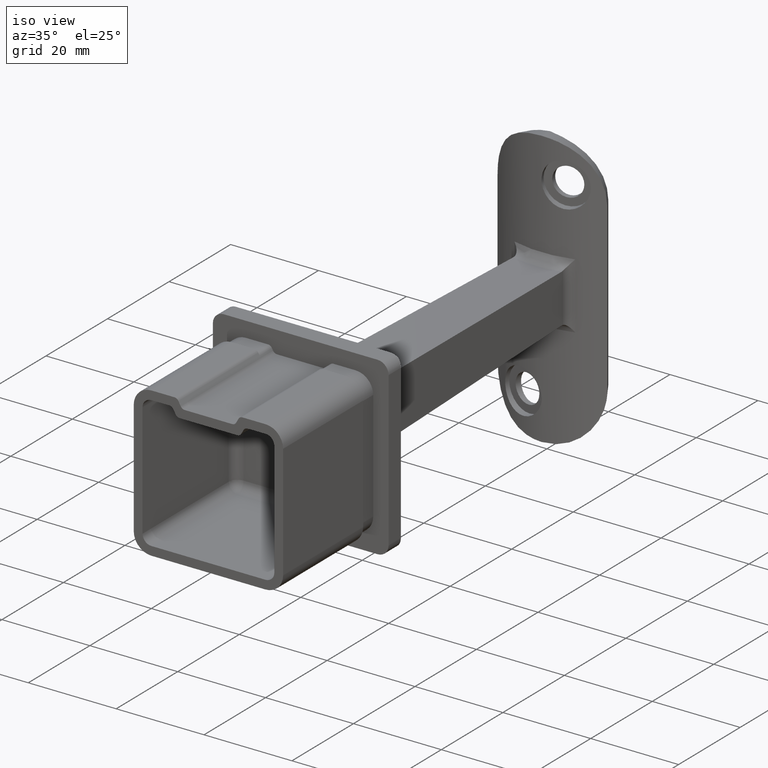
[diagram: clean part render]
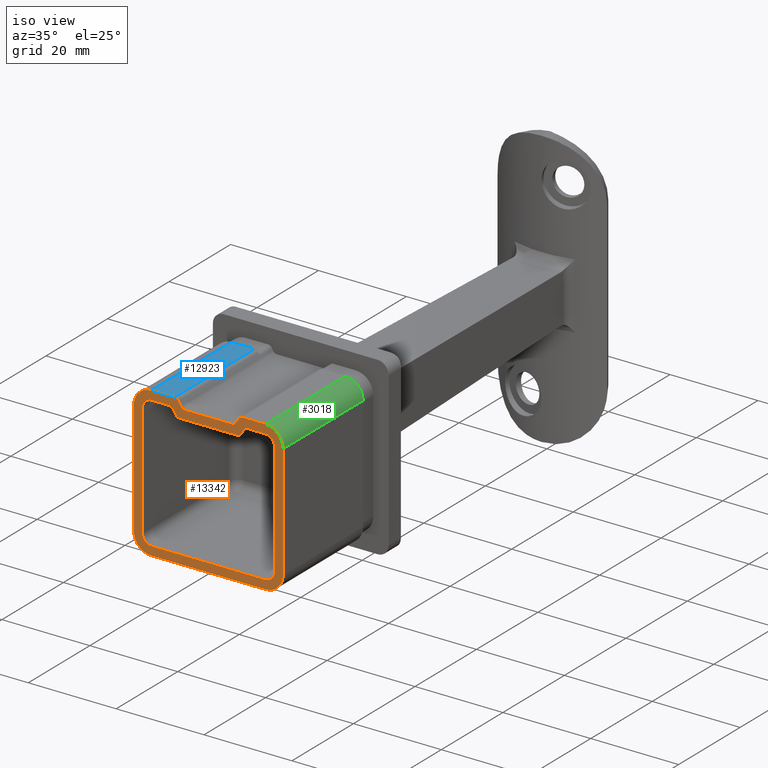
[diagram: same view with three faces highlighted in distinct colors, each labeled with its STEP entity id]
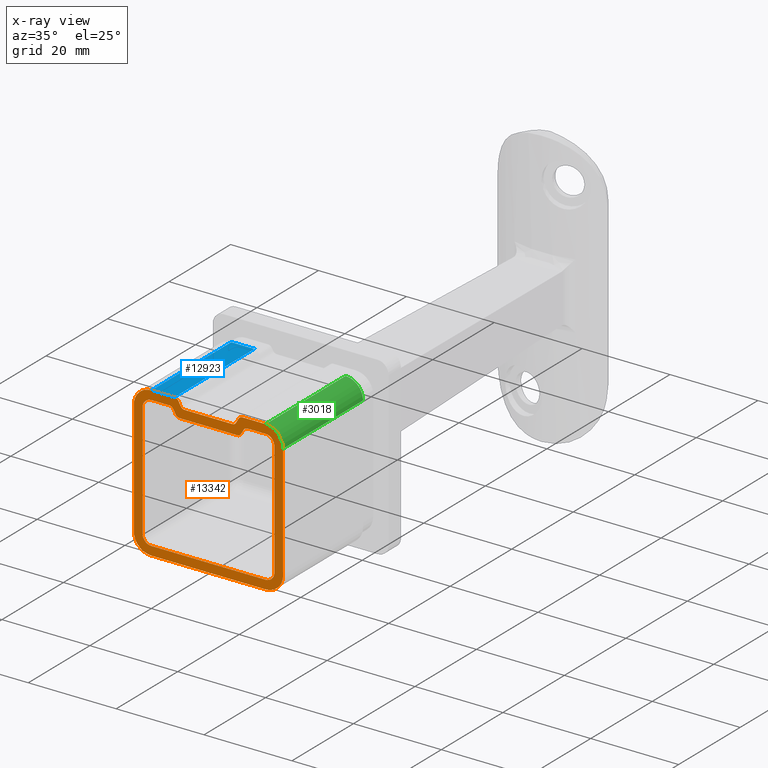
[diagram: x-ray of the same camera — body ghosted, the three highlighted faces saturated]
A machine part, iso view with three faces highlighted in distinct colors.
The next image is the same camera in x-ray (body ghosted, the three faces saturated) — at least one of them is partly hidden behind the body in this view.
Their STEP definitions:

[orange] entity #13342 — the highlighted planar face has unit normal (0, -1, 0).
#112 = CARTESIAN_POINT ( 'NONE',  ( -17.00000000000000355, -30.00000000000000000, -13.00000000000000533 ) ) ;
#205 = CARTESIAN_POINT ( 'NONE',  ( 8.673617379884037444E-16, -30.00000000000000000, -15.00000000000000355 ) ) ;
#360 = VERTEX_POINT ( 'NONE', #3699 ) ;
#378 = DIRECTION ( 'NONE',  ( -0.000000000000000000, 1.000000000000000000, -0.000000000000000000 ) ) ;
#419 = LINE ( 'NONE', #13459, #6982 ) ;
#462 = AXIS2_PLACEMENT_3D ( 'NONE', #12911, #14147, #15362 ) ;
#557 = DIRECTION ( 'NONE',  ( -0.000000000000000000, 1.000000000000000000, -0.000000000000000000 ) ) ;
#662 = DIRECTION ( 'NONE',  ( 0.000000000000000000, -1.000000000000000000, 0.000000000000000000 ) ) ;
#667 = VERTEX_POINT ( 'NONE', #4954 ) ;
#924 = DIRECTION ( 'NONE',  ( -0.000000000000000000, 1.000000000000000000, -0.000000000000000000 ) ) ;
#972 = CARTESIAN_POINT ( 'NONE',  ( 16.99999999999999645, -30.00000000000000000, 17.00000000000000355 ) ) ;
#980 = EDGE_CURVE ( 'NONE', #667, #5282, #7734, .T. ) ;
#1091 = ORIENTED_EDGE ( 'NONE', *, *, #5613, .T. ) ;
#1115 = VERTEX_POINT ( 'NONE', #14782 ) ;
#1152 = VERTEX_POINT ( 'NONE', #15920 ) ;
#1188 = EDGE_CURVE ( 'NONE', #12578, #14993, #419, .T. ) ;
#1192 = LINE ( 'NONE', #13693, #7145 ) ;
#1249 = CARTESIAN_POINT ( 'NONE',  ( 0.000000000000000000, -30.00000000000000000, 0.000000000000000000 ) ) ;
#1257 = EDGE_CURVE ( 'NONE', #8691, #4896, #3570, .T. ) ;
#1339 = DIRECTION ( 'NONE',  ( 0.000000000000000000, 0.000000000000000000, -1.000000000000000000 ) ) ;
#1457 = ORIENTED_EDGE ( 'NONE', *, *, #8167, .T. ) ;
#1547 = VECTOR ( 'NONE', #12171, 1000.000000000000000 ) ;
#1698 = ORIENTED_EDGE ( 'NONE', *, *, #12939, .T. ) ;
#1763 = CIRCLE ( 'NONE', #3958, 1.000000000000000888 ) ;
#1815 = CIRCLE ( 'NONE', #8132, 1.000000000000000888 ) ;
#1831 = ORIENTED_EDGE ( 'NONE', *, *, #7512, .T. ) ;
#1843 = VERTEX_POINT ( 'NONE', #6605 ) ;
#1890 = DIRECTION ( 'NONE',  ( 1.000000000000000000, 0.000000000000000000, 5.782411586589357392E-17 ) ) ;
#1948 = DIRECTION ( 'NONE',  ( -0.000000000000000000, 1.000000000000000000, -0.000000000000000000 ) ) ;
#2040 = EDGE_CURVE ( 'NONE', #10551, #15736, #14465, .T. ) ;
#2060 = ORIENTED_EDGE ( 'NONE', *, *, #12520, .F. ) ;
#2072 = CARTESIAN_POINT ( 'NONE',  ( 6.577350269189630616, -30.00000000000000000, 13.00000000000000178 ) ) ;
#2194 = CIRCLE ( 'NONE', #462, 0.9999999999999991118 ) ;
#2195 = VECTOR ( 'NONE', #7680, 999.9999999999998863 ) ;
#2199 = DIRECTION ( 'NONE',  ( 0.4999999999999936162, -0.000000000000000000, -0.8660254037844423713 ) ) ;
#2247 = ORIENTED_EDGE ( 'NONE', *, *, #980, .T. ) ;
#2260 = VERTEX_POINT ( 'NONE', #9461 ) ;
#2297 = EDGE_LOOP ( 'NONE', ( #2060, #1091, #8372, #1831, #12927, #5828, #7273, #11777, #8011, #11411, #11440, #4089, #9238, #5972, #14027, #13434 ) ) ;
#2318 = EDGE_CURVE ( 'NONE', #6455, #5193, #3941, .T. ) ;
#2335 = CARTESIAN_POINT ( 'NONE',  ( -1.575985260789616301E-15, -30.00000000000000000, 13.00000000000000178 ) ) ;
#2345 = DIRECTION ( 'NONE',  ( 0.000000000000000000, 0.000000000000000000, -1.000000000000000000 ) ) ;
#2391 = CARTESIAN_POINT ( 'NONE',  ( -7.443375672974072543, -30.00000000000000000, 13.50000000000000888 ) ) ;
#2443 = DIRECTION ( 'NONE',  ( -0.4999999999999936162, 0.000000000000000000, 0.8660254037844423713 ) ) ;
#2449 = DIRECTION ( 'NONE',  ( -1.000000000000000000, 0.000000000000000000, -2.592777561289471783E-16 ) ) ;
#2465 = VERTEX_POINT ( 'NONE', #7763 ) ;
#2484 = DIRECTION ( 'NONE',  ( 0.000000000000000000, 0.000000000000000000, -1.000000000000000000 ) ) ;
#2502 = CIRCLE ( 'NONE', #13985, 4.000000000000000000 ) ;
#2542 = CIRCLE ( 'NONE', #8305, 1.000000000000000888 ) ;
#2599 = CARTESIAN_POINT ( 'NONE',  ( -13.00000000000000533, -30.00000000000000000, -13.00000000000000533 ) ) ;
#2603 = VERTEX_POINT ( 'NONE', #10709 ) ;
#2663 = ORIENTED_EDGE ( 'NONE', *, *, #1188, .F. ) ;
#2761 = CIRCLE ( 'NONE', #3807, 2.000000000000000000 ) ;
#2841 = CARTESIAN_POINT ( 'NONE',  ( -15.00000000000000178, -30.00000000000000000, -13.00000000000000355 ) ) ;
#2993 = DIRECTION ( 'NONE',  ( 1.156482317317871478E-16, 0.000000000000000000, -1.000000000000000000 ) ) ;
#3184 = CIRCLE ( 'NONE', #15410, 2.000000000000000000 ) ;
#3295 = VECTOR ( 'NONE', #10987, 1000.000000000000000 ) ;
#3403 = VECTOR ( 'NONE', #2443, 1000.000000000000000 ) ;
#3478 = ORIENTED_EDGE ( 'NONE', *, *, #10352, .T. ) ;
#3520 = VECTOR ( 'NONE', #9796, 1000.000000000000000 ) ;
#3570 = CIRCLE ( 'NONE', #13622, 0.9999999999999991118 ) ;
#3597 = CARTESIAN_POINT ( 'NONE',  ( -6.577350269189629728, -30.00000000000000000, 14.00000000000000000 ) ) ;
#3602 = EDGE_CURVE ( 'NONE', #1152, #2603, #7310, .T. ) ;
#3639 = AXIS2_PLACEMENT_3D ( 'NONE', #5669, #14532, #10819 ) ;
#3640 = VERTEX_POINT ( 'NONE', #12495 ) ;
#3658 = ORIENTED_EDGE ( 'NONE', *, *, #13821, .T. ) ;
#3699 = CARTESIAN_POINT ( 'NONE',  ( 7.732050807568866979, -30.00000000000000000, 17.00000000000000000 ) ) ;
#3807 = AXIS2_PLACEMENT_3D ( 'NONE', #9858, #924, #2345 ) ;
#3828 = DIRECTION ( 'NONE',  ( 0.000000000000000000, -1.000000000000000000, 0.000000000000000000 ) ) ;
#3911 = DIRECTION ( 'NONE',  ( 0.000000000000000000, 0.000000000000000000, -1.000000000000000000 ) ) ;
#3941 = CIRCLE ( 'NONE', #7443, 4.000000000000000000 ) ;
#3954 = CARTESIAN_POINT ( 'NONE',  ( 16.99999999999999645, -30.00000000000000000, 13.00000000000000533 ) ) ;
#3958 = AXIS2_PLACEMENT_3D ( 'NONE', #15062, #15165, #13841 ) ;
#4083 = CARTESIAN_POINT ( 'NONE',  ( -7.732050807568861650, -30.00000000000000000, 16.00000000000000000 ) ) ;
#4089 = ORIENTED_EDGE ( 'NONE', *, *, #8687, .T. ) ;
#4304 = CARTESIAN_POINT ( 'NONE',  ( 12.99999999999999822, -30.00000000000000000, 15.00000000000000533 ) ) ;
#4320 = EDGE_CURVE ( 'NONE', #11396, #2465, #2194, .T. ) ;
#4419 = EDGE_CURVE ( 'NONE', #10138, #3640, #8135, .T. ) ;
#4540 = CARTESIAN_POINT ( 'NONE',  ( 0.2631397208143128608, -30.00000000000000000, 0.1519237886466238974 ) ) ;
#4896 = VERTEX_POINT ( 'NONE', #9076 ) ;
#4921 = CARTESIAN_POINT ( 'NONE',  ( -13.00000000000000178, -30.00000000000000000, -15.00000000000000355 ) ) ;
#4954 = CARTESIAN_POINT ( 'NONE',  ( -7.732050807568861650, -30.00000000000000000, 17.00000000000000000 ) ) ;
#4993 = ORIENTED_EDGE ( 'NONE', *, *, #3602, .F. ) ;
#5075 = ORIENTED_EDGE ( 'NONE', *, *, #11896, .T. ) ;
#5093 = VERTEX_POINT ( 'NONE', #11134 ) ;
#5143 = CIRCLE ( 'NONE', #14029, 1.000000000000000888 ) ;
#5168 = CIRCLE ( 'NONE', #13475, 1.000000000000000888 ) ;
#5193 = VERTEX_POINT ( 'NONE', #6323 ) ;
#5225 = EDGE_CURVE ( 'NONE', #1843, #15736, #1192, .T. ) ;
#5240 = CARTESIAN_POINT ( 'NONE',  ( 8.020725942163686284, -30.00000000000000000, 14.50000000000000178 ) ) ;
#5257 = ORIENTED_EDGE ( 'NONE', *, *, #15508, .T. ) ;
#5282 = VERTEX_POINT ( 'NONE', #11564 ) ;
#5319 = CIRCLE ( 'NONE', #10298, 4.000000000000000000 ) ;
#5327 = EDGE_CURVE ( 'NONE', #5443, #13032, #9485, .T. ) ;
#5361 = DIRECTION ( 'NONE',  ( 0.000000000000000000, -1.000000000000000000, 0.000000000000000000 ) ) ;
#5443 = VERTEX_POINT ( 'NONE', #8115 ) ;
#5514 = CARTESIAN_POINT ( 'NONE',  ( -13.00000000000000178, -30.00000000000000000, -13.00000000000000355 ) ) ;
#5520 = DIRECTION ( 'NONE',  ( 0.000000000000000000, 0.000000000000000000, -1.000000000000000000 ) ) ;
#5613 = EDGE_CURVE ( 'NONE', #7639, #11790, #1763, .T. ) ;
#5654 = DIRECTION ( 'NONE',  ( 0.000000000000000000, 0.000000000000000000, -1.000000000000000000 ) ) ;
#5669 = CARTESIAN_POINT ( 'NONE',  ( 8.886751345948125547, -30.00000000000000000, 14.00000000000000355 ) ) ;
#5687 = CARTESIAN_POINT ( 'NONE',  ( 12.99999999999999822, -30.00000000000000000, 13.00000000000000533 ) ) ;
#5769 = VECTOR ( 'NONE', #1890, 1000.000000000000000 ) ;
#5828 = ORIENTED_EDGE ( 'NONE', *, *, #2040, .T. ) ;
#5906 = CIRCLE ( 'NONE', #3639, 0.9999999999999991118 ) ;
#5972 = ORIENTED_EDGE ( 'NONE', *, *, #4320, .T. ) ;
#6041 = ORIENTED_EDGE ( 'NONE', *, *, #12627, .T. ) ;
#6058 = CARTESIAN_POINT ( 'NONE',  ( -13.00000000000000533, -30.00000000000000000, -17.00000000000000355 ) ) ;
#6075 = VERTEX_POINT ( 'NONE', #6058 ) ;
#6085 = CARTESIAN_POINT ( 'NONE',  ( 7.443375672974075208, -30.00000000000000000, 13.50000000000001243 ) ) ;
#6099 = DIRECTION ( 'NONE',  ( 0.000000000000000000, 0.000000000000000000, 1.000000000000000000 ) ) ;
#6159 = CARTESIAN_POINT ( 'NONE',  ( 12.99999999999999822, -30.00000000000000000, -16.99999999999999645 ) ) ;
#6179 = DIRECTION ( 'NONE',  ( 0.000000000000000000, 0.000000000000000000, -1.000000000000000000 ) ) ;
#6227 = DIRECTION ( 'NONE',  ( 0.000000000000000000, 0.000000000000000000, -1.000000000000000000 ) ) ;
#6323 = CARTESIAN_POINT ( 'NONE',  ( 16.99999999999999645, -30.00000000000000000, -12.99999999999999822 ) ) ;
#6428 = CARTESIAN_POINT ( 'NONE',  ( -17.00000000000000355, -30.00000000000000000, -17.00000000000000355 ) ) ;
#6434 = CARTESIAN_POINT ( 'NONE',  ( -3.889166341934207970E-15, -30.00000000000000000, 15.00000000000000178 ) ) ;
#6455 = VERTEX_POINT ( 'NONE', #6159 ) ;
#6494 = CARTESIAN_POINT ( 'NONE',  ( 7.732050807568866979, -30.00000000000000000, 16.00000000000000000 ) ) ;
#6517 = VECTOR ( 'NONE', #8306, 1000.000000000000000 ) ;
#6590 = CARTESIAN_POINT ( 'NONE',  ( -17.00000000000000355, -30.00000000000000000, 16.99999999999999645 ) ) ;
#6605 = CARTESIAN_POINT ( 'NONE',  ( 14.99999999999999822, -30.00000000000000000, -13.00000000000000355 ) ) ;
#6611 = EDGE_CURVE ( 'NONE', #10551, #8023, #12640, .T. ) ;
#6690 = LINE ( 'NONE', #14229, #7473 ) ;
#6763 = VECTOR ( 'NONE', #7900, 1000.000000000000000 ) ;
#6944 = CARTESIAN_POINT ( 'NONE',  ( 7.154700538379230146, -30.00000000000000000, 16.99999999999999645 ) ) ;
#6982 = VECTOR ( 'NONE', #2199, 1000.000000000000000 ) ;
#7007 = AXIS2_PLACEMENT_3D ( 'NONE', #15493, #10260, #10371 ) ;
#7012 = CARTESIAN_POINT ( 'NONE',  ( -8.886751345948120218, -30.00000000000000000, 14.99999999999999822 ) ) ;
#7145 = VECTOR ( 'NONE', #6099, 1000.000000000000000 ) ;
#7153 = CARTESIAN_POINT ( 'NONE',  ( -6.000000000000000000, -30.00000000000000000, 15.00000000000000178 ) ) ;
#7273 = ORIENTED_EDGE ( 'NONE', *, *, #5225, .F. ) ;
#7293 = CARTESIAN_POINT ( 'NONE',  ( -3.889166341934200870E-15, -30.00000000000000000, 15.00000000000000000 ) ) ;
#7310 = LINE ( 'NONE', #7153, #1547 ) ;
#7413 = CARTESIAN_POINT ( 'NONE',  ( 12.99999999999999822, -30.00000000000000000, -12.99999999999999822 ) ) ;
#7443 = AXIS2_PLACEMENT_3D ( 'NONE', #7413, #16203, #2484 ) ;
#7473 = VECTOR ( 'NONE', #7720, 1000.000000000000000 ) ;
#7512 = EDGE_CURVE ( 'NONE', #14941, #8023, #5906, .T. ) ;
#7639 = VERTEX_POINT ( 'NONE', #2072 ) ;
#7680 = DIRECTION ( 'NONE',  ( -0.4999999999999938383, 0.000000000000000000, -0.8660254037844422603 ) ) ;
#7685 = DIRECTION ( 'NONE',  ( 0.000000000000000000, 0.000000000000000000, -1.000000000000000000 ) ) ;
#7720 = DIRECTION ( 'NONE',  ( -1.000000000000000000, -0.000000000000000000, -2.040851148208008245E-16 ) ) ;
#7734 = LINE ( 'NONE', #9437, #12503 ) ;
#7763 = CARTESIAN_POINT ( 'NONE',  ( -8.020725942163677402, -30.00000000000000000, 14.49999999999999289 ) ) ;
#7892 = LINE ( 'NONE', #972, #3520 ) ;
#7900 = DIRECTION ( 'NONE',  ( 1.000000000000000000, 0.000000000000000000, 2.040851148208008245E-16 ) ) ;
#8009 = AXIS2_PLACEMENT_3D ( 'NONE', #12786, #13814, #6227 ) ;
#8011 = ORIENTED_EDGE ( 'NONE', *, *, #4419, .F. ) ;
#8023 = VERTEX_POINT ( 'NONE', #11015 ) ;
#8115 = CARTESIAN_POINT ( 'NONE',  ( -17.00000000000000355, -30.00000000000000000, 13.00000000000000000 ) ) ;
#8123 = FACE_OUTER_BOUND ( 'NONE', #10761, .T. ) ;
#8132 = AXIS2_PLACEMENT_3D ( 'NONE', #14948, #8616, #14110 ) ;
#8135 = LINE ( 'NONE', #205, #5769 ) ;
#8167 = EDGE_CURVE ( 'NONE', #1115, #360, #6690, .T. ) ;
#8289 = EDGE_CURVE ( 'NONE', #11396, #10256, #10433, .T. ) ;
#8305 = AXIS2_PLACEMENT_3D ( 'NONE', #4083, #5361, #1339 ) ;
#8306 = DIRECTION ( 'NONE',  ( 0.4999999999999936162, -0.000000000000000000, 0.8660254037844423713 ) ) ;
#8372 = ORIENTED_EDGE ( 'NONE', *, *, #10071, .F. ) ;
#8505 = VECTOR ( 'NONE', #3911, 1000.000000000000000 ) ;
#8593 = AXIS2_PLACEMENT_3D ( 'NONE', #1249, #3828, #11286 ) ;
#8616 = DIRECTION ( 'NONE',  ( -0.000000000000000000, 1.000000000000000000, -0.000000000000000000 ) ) ;
#8687 = EDGE_CURVE ( 'NONE', #5093, #10256, #15589, .T. ) ;
#8691 = VERTEX_POINT ( 'NONE', #2391 ) ;
#8717 = LINE ( 'NONE', #12412, #2195 ) ;
#8779 = EDGE_CURVE ( 'NONE', #13032, #6075, #2502, .T. ) ;
#8906 = CARTESIAN_POINT ( 'NONE',  ( -6.866025403784419723, -30.00000000000000000, 16.49999999999999289 ) ) ;
#9076 = CARTESIAN_POINT ( 'NONE',  ( -6.577350269189629728, -30.00000000000000000, 13.00000000000000178 ) ) ;
#9238 = ORIENTED_EDGE ( 'NONE', *, *, #8289, .F. ) ;
#9437 = CARTESIAN_POINT ( 'NONE',  ( -17.00000000000000355, -30.00000000000000000, 16.99999999999999645 ) ) ;
#9461 = CARTESIAN_POINT ( 'NONE',  ( 6.866025403784422387, -30.00000000000000000, 16.49999999999999645 ) ) ;
#9485 = LINE ( 'NONE', #6590, #8505 ) ;
#9796 = DIRECTION ( 'NONE',  ( -0.000000000000000000, -0.000000000000000000, 1.000000000000000000 ) ) ;
#9858 = CARTESIAN_POINT ( 'NONE',  ( 12.99999999999999822, -30.00000000000000000, -13.00000000000000355 ) ) ;
#9900 = FACE_BOUND ( 'NONE', #2297, .T. ) ;
#9945 = LINE ( 'NONE', #4540, #3403 ) ;
#9963 = DIRECTION ( 'NONE',  ( 0.000000000000000000, -1.000000000000000000, 0.000000000000000000 ) ) ;
#10071 = EDGE_CURVE ( 'NONE', #14941, #11790, #8717, .T. ) ;
#10138 = VERTEX_POINT ( 'NONE', #4921 ) ;
#10191 = ORIENTED_EDGE ( 'NONE', *, *, #14963, .T. ) ;
#10256 = VERTEX_POINT ( 'NONE', #15241 ) ;
#10260 = DIRECTION ( 'NONE',  ( 0.000000000000000000, -1.000000000000000000, 0.000000000000000000 ) ) ;
#10287 = CARTESIAN_POINT ( 'NONE',  ( 14.99999999999999822, -30.00000000000000000, 13.00000000000000533 ) ) ;
#10298 = AXIS2_PLACEMENT_3D ( 'NONE', #5687, #662, #5520 ) ;
#10352 = EDGE_CURVE ( 'NONE', #6075, #6455, #10705, .T. ) ;
#10371 = DIRECTION ( 'NONE',  ( 0.000000000000000000, 0.000000000000000000, -1.000000000000000000 ) ) ;
#10433 = LINE ( 'NONE', #7293, #3295 ) ;
#10520 = ORIENTED_EDGE ( 'NONE', *, *, #5327, .T. ) ;
#10551 = VERTEX_POINT ( 'NONE', #4304 ) ;
#10623 = DIRECTION ( 'NONE',  ( 0.000000000000000000, 0.000000000000000000, -1.000000000000000000 ) ) ;
#10705 = LINE ( 'NONE', #6428, #6763 ) ;
#10709 = CARTESIAN_POINT ( 'NONE',  ( 5.422649730810368496, -30.00000000000000000, 15.00000000000000178 ) ) ;
#10730 = VERTEX_POINT ( 'NONE', #3954 ) ;
#10761 = EDGE_LOOP ( 'NONE', ( #2663, #13963, #2247, #5075, #10520, #16052, #3478, #12983, #5257, #10191, #1457, #6041, #16198, #3658, #4993, #1698 ) ) ;
#10819 = DIRECTION ( 'NONE',  ( 0.000000000000000000, 0.000000000000000000, -1.000000000000000000 ) ) ;
#10987 = DIRECTION ( 'NONE',  ( -1.000000000000000000, 0.000000000000000000, -2.592777561289467345E-16 ) ) ;
#11015 = CARTESIAN_POINT ( 'NONE',  ( 8.886751345948125547, -30.00000000000000000, 15.00000000000000355 ) ) ;
#11069 = LINE ( 'NONE', #15811, #12641 ) ;
#11134 = CARTESIAN_POINT ( 'NONE',  ( -15.00000000000000533, -30.00000000000000000, 12.99999999999999645 ) ) ;
#11286 = DIRECTION ( 'NONE',  ( 0.000000000000000000, -0.000000000000000000, -1.000000000000000000 ) ) ;
#11396 = VERTEX_POINT ( 'NONE', #7012 ) ;
#11411 = ORIENTED_EDGE ( 'NONE', *, *, #13064, .T. ) ;
#11440 = ORIENTED_EDGE ( 'NONE', *, *, #15943, .F. ) ;
#11500 = EDGE_CURVE ( 'NONE', #8691, #2465, #9945, .T. ) ;
#11564 = CARTESIAN_POINT ( 'NONE',  ( -13.00000000000000533, -30.00000000000000000, 16.99999999999999645 ) ) ;
#11697 = AXIS2_PLACEMENT_3D ( 'NONE', #13253, #1948, #5654 ) ;
#11730 = DIRECTION ( 'NONE',  ( 0.000000000000000000, 0.000000000000000000, -1.000000000000000000 ) ) ;
#11777 = ORIENTED_EDGE ( 'NONE', *, *, #14366, .T. ) ;
#11790 = VERTEX_POINT ( 'NONE', #6085 ) ;
#11896 = EDGE_CURVE ( 'NONE', #5282, #5443, #15505, .T. ) ;
#12008 = DIRECTION ( 'NONE',  ( -1.000000000000000000, -0.000000000000000000, -2.040851148208008245E-16 ) ) ;
#12171 = DIRECTION ( 'NONE',  ( 1.000000000000000000, 0.000000000000000000, 0.000000000000000000 ) ) ;
#12412 = CARTESIAN_POINT ( 'NONE',  ( -0.2631397208143151367, -30.00000000000000000, 0.1519237886466253129 ) ) ;
#12446 = VECTOR ( 'NONE', #2449, 1000.000000000000000 ) ;
#12495 = CARTESIAN_POINT ( 'NONE',  ( 12.99999999999999822, -30.00000000000000000, -15.00000000000000355 ) ) ;
#12503 = VECTOR ( 'NONE', #12008, 1000.000000000000000 ) ;
#12518 = DIRECTION ( 'NONE',  ( -1.000000000000000000, 0.000000000000000000, -1.212296354453550887E-16 ) ) ;
#12520 = EDGE_CURVE ( 'NONE', #7639, #4896, #15703, .T. ) ;
#12570 = DIRECTION ( 'NONE',  ( 0.000000000000000000, 0.000000000000000000, -1.000000000000000000 ) ) ;
#12578 = VERTEX_POINT ( 'NONE', #8906 ) ;
#12627 = EDGE_CURVE ( 'NONE', #360, #2260, #5168, .T. ) ;
#12640 = LINE ( 'NONE', #6434, #12446 ) ;
#12641 = VECTOR ( 'NONE', #2993, 1000.000000000000000 ) ;
#12673 = DIRECTION ( 'NONE',  ( 0.000000000000000000, -1.000000000000000000, 0.000000000000000000 ) ) ;
#12709 = VERTEX_POINT ( 'NONE', #14244 ) ;
#12786 = CARTESIAN_POINT ( 'NONE',  ( -13.00000000000000533, -30.00000000000000000, 12.99999999999999645 ) ) ;
#12787 = DIRECTION ( 'NONE',  ( 0.000000000000000000, -1.000000000000000000, 0.000000000000000000 ) ) ;
#12911 = CARTESIAN_POINT ( 'NONE',  ( -8.886751345948120218, -30.00000000000000000, 13.99999999999999645 ) ) ;
#12927 = ORIENTED_EDGE ( 'NONE', *, *, #6611, .F. ) ;
#12939 = EDGE_CURVE ( 'NONE', #1152, #14993, #1815, .T. ) ;
#12983 = ORIENTED_EDGE ( 'NONE', *, *, #2318, .T. ) ;
#13032 = VERTEX_POINT ( 'NONE', #112 ) ;
#13064 = EDGE_CURVE ( 'NONE', #10138, #14178, #3184, .T. ) ;
#13232 = CARTESIAN_POINT ( 'NONE',  ( -6.288675134594811311, -30.00000000000000000, 15.50000000000000711 ) ) ;
#13253 = CARTESIAN_POINT ( 'NONE',  ( 12.99999999999999822, -30.00000000000000000, 13.00000000000000533 ) ) ;
#13342 = ADVANCED_FACE ( 'NONE', ( #9900, #8123 ), #15212, .T. ) ;
#13434 = ORIENTED_EDGE ( 'NONE', *, *, #1257, .T. ) ;
#13459 = CARTESIAN_POINT ( 'NONE',  ( -6.000000000000000000, -30.00000000000000000, 15.00000000000000178 ) ) ;
#13475 = AXIS2_PLACEMENT_3D ( 'NONE', #6494, #12787, #7685 ) ;
#13622 = AXIS2_PLACEMENT_3D ( 'NONE', #3597, #9963, #6179 ) ;
#13693 = CARTESIAN_POINT ( 'NONE',  ( 14.99999999999999822, -30.00000000000000000, 0.000000000000000000 ) ) ;
#13814 = DIRECTION ( 'NONE',  ( -0.000000000000000000, 1.000000000000000000, -0.000000000000000000 ) ) ;
#13821 = EDGE_CURVE ( 'NONE', #12709, #2603, #5143, .T. ) ;
#13841 = DIRECTION ( 'NONE',  ( 0.000000000000000000, 0.000000000000000000, -1.000000000000000000 ) ) ;
#13963 = ORIENTED_EDGE ( 'NONE', *, *, #15735, .T. ) ;
#13985 = AXIS2_PLACEMENT_3D ( 'NONE', #2599, #12673, #12570 ) ;
#14027 = ORIENTED_EDGE ( 'NONE', *, *, #11500, .F. ) ;
#14029 = AXIS2_PLACEMENT_3D ( 'NONE', #15805, #557, #10623 ) ;
#14110 = DIRECTION ( 'NONE',  ( 0.000000000000000000, 0.000000000000000000, -1.000000000000000000 ) ) ;
#14147 = DIRECTION ( 'NONE',  ( -0.000000000000000000, 1.000000000000000000, -0.000000000000000000 ) ) ;
#14178 = VERTEX_POINT ( 'NONE', #2841 ) ;
#14229 = CARTESIAN_POINT ( 'NONE',  ( -17.00000000000000355, -30.00000000000000000, 16.99999999999999645 ) ) ;
#14244 = CARTESIAN_POINT ( 'NONE',  ( 6.288675134594811311, -30.00000000000000000, 15.50000000000000711 ) ) ;
#14366 = EDGE_CURVE ( 'NONE', #1843, #3640, #2761, .T. ) ;
#14438 = LINE ( 'NONE', #6944, #6517 ) ;
#14465 = CIRCLE ( 'NONE', #11697, 2.000000000000000000 ) ;
#14494 = VECTOR ( 'NONE', #12518, 1000.000000000000000 ) ;
#14532 = DIRECTION ( 'NONE',  ( -0.000000000000000000, 1.000000000000000000, -0.000000000000000000 ) ) ;
#14782 = CARTESIAN_POINT ( 'NONE',  ( 12.99999999999999822, -30.00000000000000000, 17.00000000000000355 ) ) ;
#14941 = VERTEX_POINT ( 'NONE', #5240 ) ;
#14948 = CARTESIAN_POINT ( 'NONE',  ( -5.422649730810368496, -30.00000000000000000, 16.00000000000000000 ) ) ;
#14963 = EDGE_CURVE ( 'NONE', #10730, #1115, #5319, .T. ) ;
#14993 = VERTEX_POINT ( 'NONE', #13232 ) ;
#15062 = CARTESIAN_POINT ( 'NONE',  ( 6.577350269189630616, -30.00000000000000000, 14.00000000000000178 ) ) ;
#15165 = DIRECTION ( 'NONE',  ( 0.000000000000000000, -1.000000000000000000, 0.000000000000000000 ) ) ;
#15212 = PLANE ( 'NONE',  #8593 ) ;
#15241 = CARTESIAN_POINT ( 'NONE',  ( -13.00000000000000533, -30.00000000000000000, 14.99999999999999645 ) ) ;
#15362 = DIRECTION ( 'NONE',  ( 0.000000000000000000, 0.000000000000000000, -1.000000000000000000 ) ) ;
#15410 = AXIS2_PLACEMENT_3D ( 'NONE', #5514, #378, #11730 ) ;
#15493 = CARTESIAN_POINT ( 'NONE',  ( -13.00000000000000533, -30.00000000000000000, 13.00000000000000000 ) ) ;
#15505 = CIRCLE ( 'NONE', #7007, 4.000000000000000000 ) ;
#15508 = EDGE_CURVE ( 'NONE', #5193, #10730, #7892, .T. ) ;
#15589 = CIRCLE ( 'NONE', #8009, 2.000000000000000000 ) ;
#15703 = LINE ( 'NONE', #2335, #14494 ) ;
#15735 = EDGE_CURVE ( 'NONE', #12578, #667, #2542, .T. ) ;
#15736 = VERTEX_POINT ( 'NONE', #10287 ) ;
#15805 = CARTESIAN_POINT ( 'NONE',  ( 5.422649730810368496, -30.00000000000000000, 16.00000000000000000 ) ) ;
#15811 = CARTESIAN_POINT ( 'NONE',  ( -15.00000000000000355, -30.00000000000000000, -1.734723475976807489E-15 ) ) ;
#15880 = EDGE_CURVE ( 'NONE', #12709, #2260, #14438, .T. ) ;
#15920 = CARTESIAN_POINT ( 'NONE',  ( -5.422649730810368496, -30.00000000000000000, 15.00000000000000178 ) ) ;
#15943 = EDGE_CURVE ( 'NONE', #5093, #14178, #11069, .T. ) ;
#16052 = ORIENTED_EDGE ( 'NONE', *, *, #8779, .T. ) ;
#16198 = ORIENTED_EDGE ( 'NONE', *, *, #15880, .F. ) ;
#16203 = DIRECTION ( 'NONE',  ( 0.000000000000000000, -1.000000000000000000, 0.000000000000000000 ) ) ;

[blue] entity #12923 — the highlighted planar face has unit normal (0, 0, -1).
#74 = CARTESIAN_POINT ( 'NONE',  ( -13.00000000000000533, -4.000000000000000000, 16.99999999999999645 ) ) ;
#629 = FACE_OUTER_BOUND ( 'NONE', #15764, .T. ) ;
#667 = VERTEX_POINT ( 'NONE', #4954 ) ;
#980 = EDGE_CURVE ( 'NONE', #667, #5282, #7734, .T. ) ;
#2858 = ORIENTED_EDGE ( 'NONE', *, *, #13497, .T. ) ;
#3447 = CARTESIAN_POINT ( 'NONE',  ( -7.732050807568861650, -4.000000000000000000, 17.00000000000000000 ) ) ;
#3741 = CARTESIAN_POINT ( 'NONE',  ( -17.00000000000000355, -30.00000000000000000, 16.99999999999999645 ) ) ;
#3789 = ORIENTED_EDGE ( 'NONE', *, *, #8590, .T. ) ;
#4108 = AXIS2_PLACEMENT_3D ( 'NONE', #3741, #16199, #8563 ) ;
#4116 = ORIENTED_EDGE ( 'NONE', *, *, #980, .F. ) ;
#4954 = CARTESIAN_POINT ( 'NONE',  ( -7.732050807568861650, -30.00000000000000000, 17.00000000000000000 ) ) ;
#5282 = VERTEX_POINT ( 'NONE', #11564 ) ;
#5722 = CARTESIAN_POINT ( 'NONE',  ( -17.00000000000000355, -4.000000000000000000, 16.99999999999999645 ) ) ;
#5937 = LINE ( 'NONE', #15375, #8101 ) ;
#7734 = LINE ( 'NONE', #9437, #12503 ) ;
#8101 = VECTOR ( 'NONE', #15483, 1000.000000000000000 ) ;
#8534 = DIRECTION ( 'NONE',  ( -1.000000000000000000, -0.000000000000000000, -2.040851148208008245E-16 ) ) ;
#8563 = DIRECTION ( 'NONE',  ( -1.000000000000000000, 0.000000000000000000, -2.040851148208008491E-16 ) ) ;
#8590 = EDGE_CURVE ( 'NONE', #13240, #11667, #13005, .T. ) ;
#8633 = VECTOR ( 'NONE', #8534, 1000.000000000000000 ) ;
#9437 = CARTESIAN_POINT ( 'NONE',  ( -17.00000000000000355, -30.00000000000000000, 16.99999999999999645 ) ) ;
#11353 = PLANE ( 'NONE',  #4108 ) ;
#11564 = CARTESIAN_POINT ( 'NONE',  ( -13.00000000000000533, -30.00000000000000000, 16.99999999999999645 ) ) ;
#11667 = VERTEX_POINT ( 'NONE', #74 ) ;
#12008 = DIRECTION ( 'NONE',  ( -1.000000000000000000, -0.000000000000000000, -2.040851148208008245E-16 ) ) ;
#12299 = LINE ( 'NONE', #14045, #14697 ) ;
#12503 = VECTOR ( 'NONE', #12008, 1000.000000000000000 ) ;
#12923 = ADVANCED_FACE ( 'NONE', ( #629 ), #11353, .F. ) ;
#13005 = LINE ( 'NONE', #5722, #8633 ) ;
#13240 = VERTEX_POINT ( 'NONE', #3447 ) ;
#13497 = EDGE_CURVE ( 'NONE', #11667, #5282, #12299, .T. ) ;
#13992 = DIRECTION ( 'NONE',  ( -0.000000000000000000, -1.000000000000000000, -0.000000000000000000 ) ) ;
#14045 = CARTESIAN_POINT ( 'NONE',  ( -13.00000000000000533, -30.00000000000000000, 16.99999999999999645 ) ) ;
#14697 = VECTOR ( 'NONE', #13992, 1000.000000000000000 ) ;
#15139 = ORIENTED_EDGE ( 'NONE', *, *, #15378, .T. ) ;
#15375 = CARTESIAN_POINT ( 'NONE',  ( -7.732050807568861650, -30.00000000000000000, 17.00000000000000000 ) ) ;
#15378 = EDGE_CURVE ( 'NONE', #667, #13240, #5937, .T. ) ;
#15483 = DIRECTION ( 'NONE',  ( -0.000000000000000000, 1.000000000000000000, -0.000000000000000000 ) ) ;
#15764 = EDGE_LOOP ( 'NONE', ( #4116, #15139, #3789, #2858 ) ) ;
#16199 = DIRECTION ( 'NONE',  ( 2.040851148208008491E-16, 0.000000000000000000, -1.000000000000000000 ) ) ;

[green] entity #3018 — the highlighted cylindrical surface (edge-blend (fillet) strip) has radius 4 mm, axis along (0, 1, 0).
#200 = VECTOR ( 'NONE', #2646, 1000.000000000000000 ) ;
#662 = DIRECTION ( 'NONE',  ( 0.000000000000000000, -1.000000000000000000, 0.000000000000000000 ) ) ;
#804 = DIRECTION ( 'NONE',  ( 0.000000000000000000, 0.000000000000000000, -1.000000000000000000 ) ) ;
#1115 = VERTEX_POINT ( 'NONE', #14782 ) ;
#2646 = DIRECTION ( 'NONE',  ( -0.000000000000000000, -1.000000000000000000, -0.000000000000000000 ) ) ;
#3018 = ADVANCED_FACE ( 'NONE', ( #3132 ), #14251, .T. ) ;
#3132 = FACE_OUTER_BOUND ( 'NONE', #16210, .T. ) ;
#3187 = EDGE_CURVE ( 'NONE', #7239, #10730, #14653, .T. ) ;
#3580 = ORIENTED_EDGE ( 'NONE', *, *, #5294, .F. ) ;
#3954 = CARTESIAN_POINT ( 'NONE',  ( 16.99999999999999645, -30.00000000000000000, 13.00000000000000533 ) ) ;
#4157 = AXIS2_PLACEMENT_3D ( 'NONE', #7008, #14742, #804 ) ;
#4535 = EDGE_CURVE ( 'NONE', #9780, #7239, #9882, .T. ) ;
#5294 = EDGE_CURVE ( 'NONE', #1115, #9780, #8883, .T. ) ;
#5319 = CIRCLE ( 'NONE', #10298, 4.000000000000000000 ) ;
#5520 = DIRECTION ( 'NONE',  ( 0.000000000000000000, 0.000000000000000000, -1.000000000000000000 ) ) ;
#5687 = CARTESIAN_POINT ( 'NONE',  ( 12.99999999999999822, -30.00000000000000000, 13.00000000000000533 ) ) ;
#6146 = VECTOR ( 'NONE', #11625, 1000.000000000000000 ) ;
#6407 = AXIS2_PLACEMENT_3D ( 'NONE', #7274, #9454, #15819 ) ;
#7008 = CARTESIAN_POINT ( 'NONE',  ( 12.99999999999999822, -4.000000000000000000, 13.00000000000000533 ) ) ;
#7239 = VERTEX_POINT ( 'NONE', #11054 ) ;
#7274 = CARTESIAN_POINT ( 'NONE',  ( 12.99999999999999822, -30.00000000000000000, 13.00000000000000533 ) ) ;
#8883 = LINE ( 'NONE', #8996, #6146 ) ;
#8996 = CARTESIAN_POINT ( 'NONE',  ( 12.99999999999999822, -30.00000000000000000, 17.00000000000000355 ) ) ;
#9454 = DIRECTION ( 'NONE',  ( 0.000000000000000000, 1.000000000000000000, 0.000000000000000000 ) ) ;
#9780 = VERTEX_POINT ( 'NONE', #16395 ) ;
#9882 = CIRCLE ( 'NONE', #4157, 4.000000000000000000 ) ;
#10298 = AXIS2_PLACEMENT_3D ( 'NONE', #5687, #662, #5520 ) ;
#10730 = VERTEX_POINT ( 'NONE', #3954 ) ;
#11054 = CARTESIAN_POINT ( 'NONE',  ( 16.99999999999999645, -4.000000000000000000, 13.00000000000000533 ) ) ;
#11625 = DIRECTION ( 'NONE',  ( 0.000000000000000000, 1.000000000000000000, 0.000000000000000000 ) ) ;
#11955 = ORIENTED_EDGE ( 'NONE', *, *, #14963, .F. ) ;
#13619 = ORIENTED_EDGE ( 'NONE', *, *, #4535, .F. ) ;
#14251 = CYLINDRICAL_SURFACE ( 'NONE', #6407, 4.000000000000000000 ) ;
#14653 = LINE ( 'NONE', #16426, #200 ) ;
#14742 = DIRECTION ( 'NONE',  ( -0.000000000000000000, 1.000000000000000000, -0.000000000000000000 ) ) ;
#14782 = CARTESIAN_POINT ( 'NONE',  ( 12.99999999999999822, -30.00000000000000000, 17.00000000000000355 ) ) ;
#14963 = EDGE_CURVE ( 'NONE', #10730, #1115, #5319, .T. ) ;
#15819 = DIRECTION ( 'NONE',  ( 0.000000000000000000, 0.000000000000000000, 1.000000000000000000 ) ) ;
#15933 = ORIENTED_EDGE ( 'NONE', *, *, #3187, .F. ) ;
#16210 = EDGE_LOOP ( 'NONE', ( #11955, #15933, #13619, #3580 ) ) ;
#16395 = CARTESIAN_POINT ( 'NONE',  ( 12.99999999999999822, -4.000000000000000000, 17.00000000000000355 ) ) ;
#16426 = CARTESIAN_POINT ( 'NONE',  ( 16.99999999999999645, -30.00000000000000000, 13.00000000000000533 ) ) ;